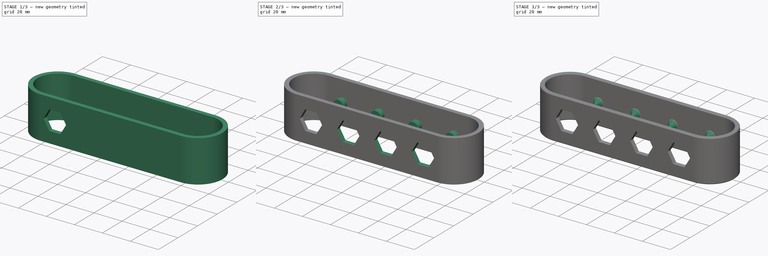
[diagram: build sequence overview — one tinted view per stage of 3, left to right]
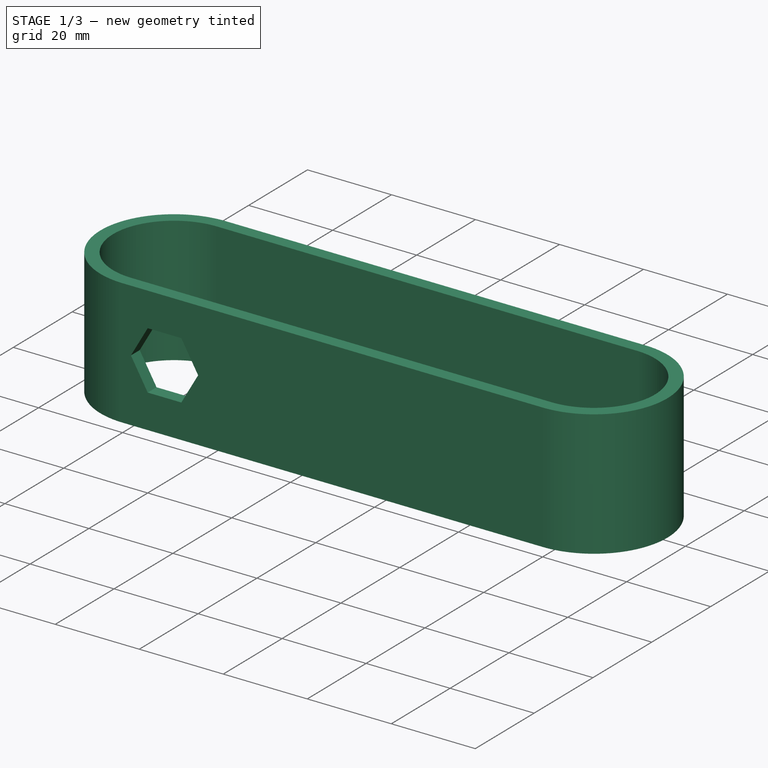
[diagram: stage 1 of 3 — iso view after this stage's code; geometry added in this stage tinted green]
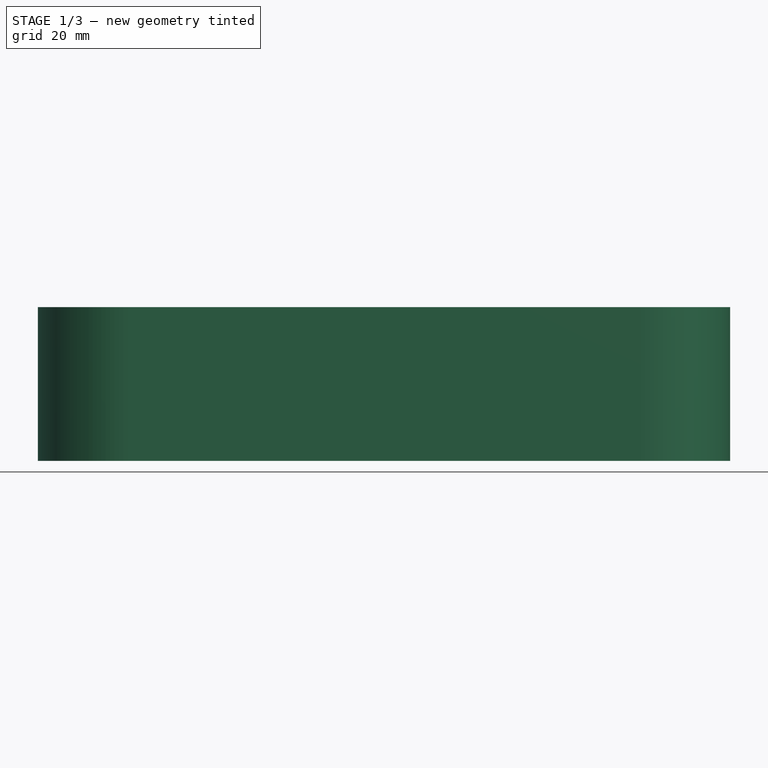
[diagram: stage 1 of 3 — front view after this stage's code; geometry added in this stage tinted green]
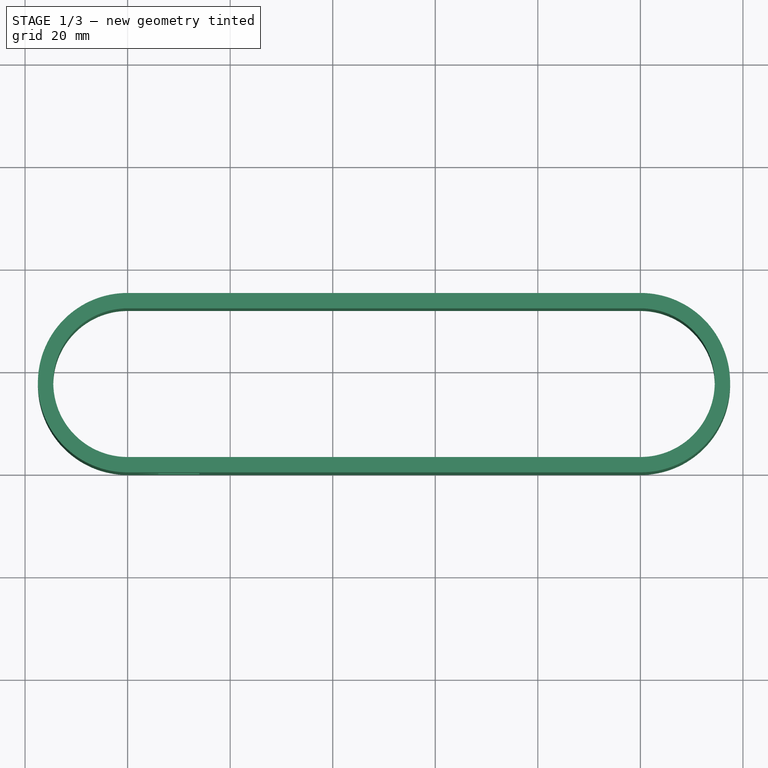
[diagram: stage 1 of 3 — top view after this stage's code; geometry added in this stage tinted green]
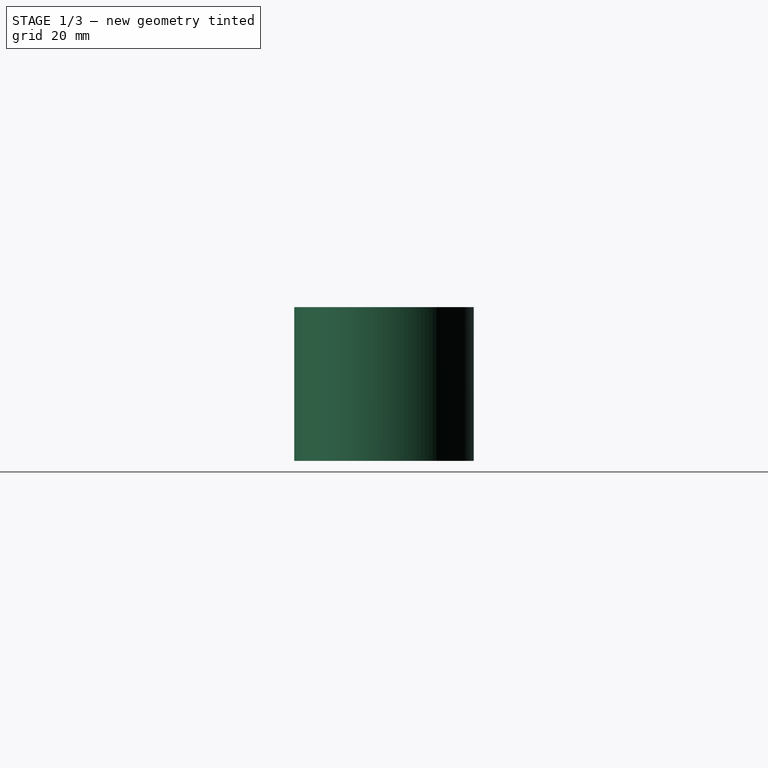
[diagram: stage 1 of 3 — right view after this stage's code; geometry added in this stage tinted green]
FCSTD DOCUMENT  (FreeCAD 0.16R6706 (Git))
Label: pb-v4-pour4
License: All rights reserved
LicenseURL: http://en.wikipedia.org/wiki/All_rights_reserved
objects: Sketcher::SketchObject×3, PartDesign::Pad×2, PartDesign::LinearPattern×2, PartDesign::Pocket×1, PartDesign::Draft×1, PartDesign::Chamfer×1
note: 13 computed .brp shape members not serialized (recipe doc carries the construction recipe); baked Part::Feature solids carry a one-line shape summary decoded from their .brp

FEATURE [Sketcher::SketchObject] Sketch
  sketch-geometry (8):
    g0: ArcOfCircle CenterX=0 CenterY=17.5 CenterZ=0 NormalX=0 NormalY=0 NormalZ=1 Radius=14.5 StartAngle=1.5708 EndAngle=4.71239
    g1: ArcOfCircle CenterX=100 CenterY=17.5 CenterZ=0 NormalX=0 NormalY=0 NormalZ=1 Radius=14.5 StartAngle=4.71239 EndAngle=7.85398
    g2: LineSegment StartX=0 StartY=3 StartZ=0 EndX=100 EndY=3 EndZ=0
    g3: LineSegment StartX=0 StartY=32 StartZ=0 EndX=100 EndY=32 EndZ=0
    g4: ArcOfCircle CenterX=0 CenterY=17.5 CenterZ=0 NormalX=0 NormalY=0 NormalZ=1 Radius=17.5 StartAngle=1.5708 EndAngle=4.71239
    g5: ArcOfCircle CenterX=100 CenterY=17.5 CenterZ=0 NormalX=0 NormalY=0 NormalZ=1 Radius=17.5 StartAngle=4.71239 EndAngle=7.85398
    g6: LineSegment StartX=0 StartY=0 StartZ=0 EndX=100 EndY=0 EndZ=0
    g7: LineSegment StartX=0 StartY=35 StartZ=0 EndX=100 EndY=35 EndZ=0
  constraints (18):
    c: Tangent(g0,g3) = 1.5708
    c: Tangent(g0,g2) = -1.5708
    c: Tangent(g2,g1) = -1.5708
    c: Tangent(g3,g1) = 1.5708
    c: Horizontal(g2)
    c: Equal(g0,g1)
    c: Distance(g3) = 100
    c: Distance(g0,g0) = 29
    c: Tangent(g4,g7) = 1.5708
    c: Tangent(g4,g6) = -1.5708
    c: Tangent(g6,g5) = -1.5708
    c: Tangent(g7,g5) = 1.5708
    c: Horizontal(g6)
    c: Equal(g4,g5)
    c: Coincident(g1,g5)
    c: Coincident(g4,g0)
    c: Distance(g1,g5) = 3
    c: Coincident(g4,g-1)
FEATURE [PartDesign::Pad] Pad
  Length = 30
  Length2 = 100
  Sketch = -> Sketch
  Type = 0
FEATURE [Sketcher::SketchObject] Sketch001
  Placement = pos=(0,0,0) rot=(1,0,0;1.5708rad)
  Support = -> Pad [Face2]
  sketch-geometry (7):
    g0: LineSegment StartX=18 StartY=15 StartZ=0 EndX=14 EndY=21.9282 EndZ=0
    g1: LineSegment StartX=14 StartY=21.9282 StartZ=0 EndX=6 EndY=21.9282 EndZ=0
    g2: LineSegment StartX=6 StartY=21.9282 StartZ=0 EndX=2 EndY=15 EndZ=0
    g3: LineSegment StartX=2 StartY=15 StartZ=0 EndX=6 EndY=8.0718 EndZ=0
    g4: LineSegment StartX=6 StartY=8.0718 StartZ=0 EndX=14 EndY=8.0718 EndZ=0
    g5: LineSegment StartX=14 StartY=8.0718 StartZ=0 EndX=18 EndY=15 EndZ=0
    g6: Circle [constr] CenterX=10 CenterY=15 CenterZ=0 NormalX=0 NormalY=0 NormalZ=1 Radius=8
  constraints (17):
    c: Coincident(g0,g1)
    c: Coincident(g1,g2)
    c: Coincident(g2,g3)
    c: Coincident(g3,g4)
    c: Coincident(g4,g5)
    c: Coincident(g5,g0)
    c: Equal(g0, g1-g5) x5
    c: PointOnObject(g0,g6)
    c: PointOnObject(g1,g6)
    c: PointOnObject(g2,g6)
    c: PointOnObject(g3,g6)
    c: PointOnObject(g4,g6)
    c: PointOnObject(g5,g6)
    c: Horizontal(g4)
    c: DistanceY(g-1,g6) = 15
    c: DistanceX(g-2,g6) = 10
    c: Radius(g6) = 8
FEATURE [PartDesign::Pocket] Pocket
  Length = 0
  Sketch = -> Sketch001
  Type = 2
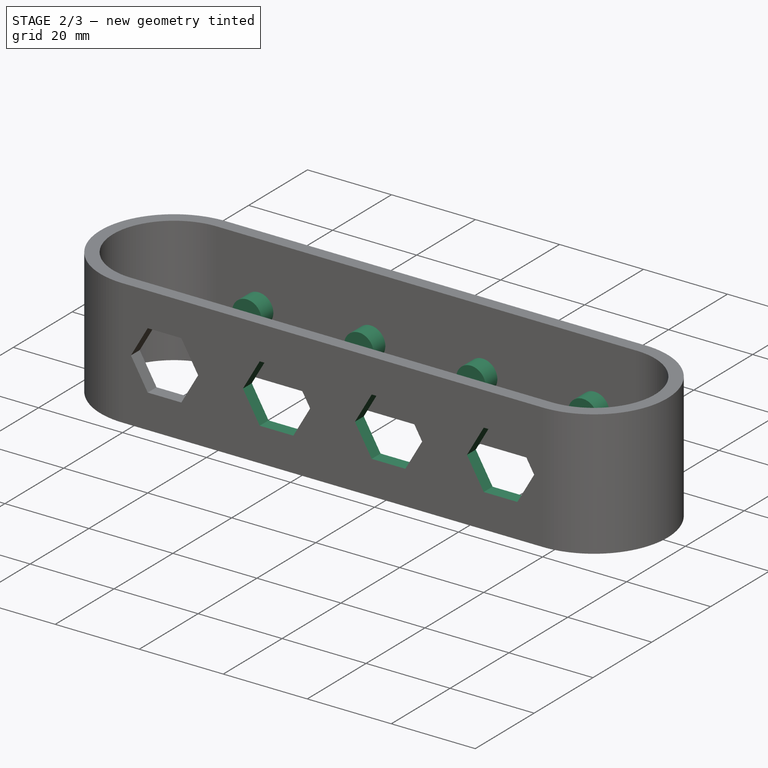
[diagram: stage 2 of 3 — iso view after this stage's code; geometry added in this stage tinted green]
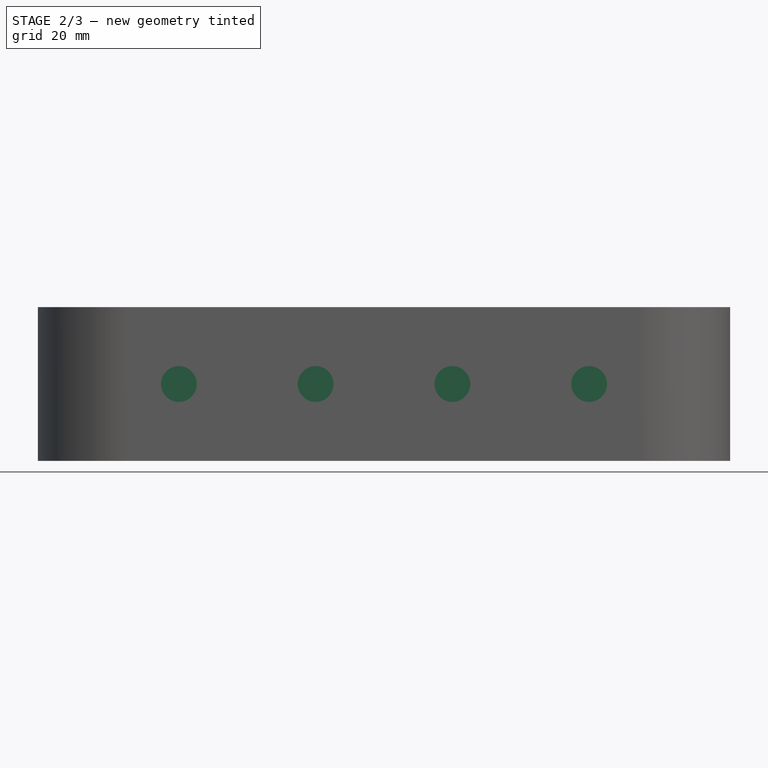
[diagram: stage 2 of 3 — front view after this stage's code; geometry added in this stage tinted green]
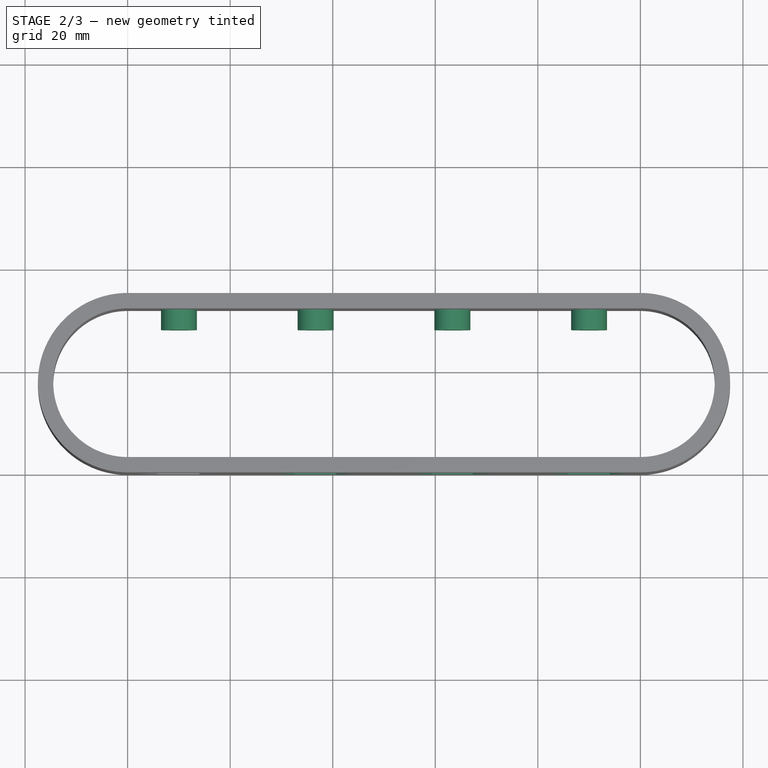
[diagram: stage 2 of 3 — top view after this stage's code; geometry added in this stage tinted green]
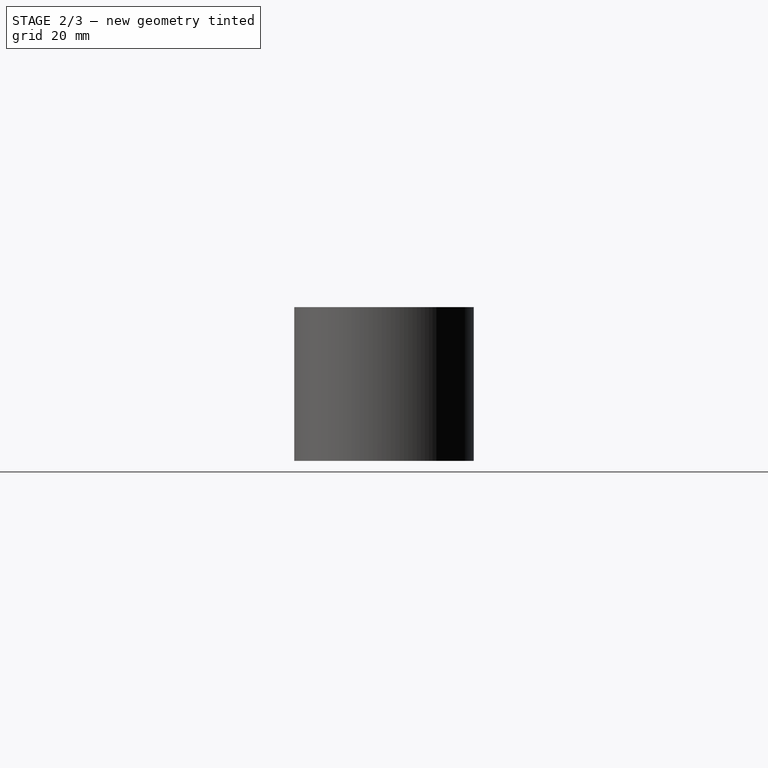
[diagram: stage 2 of 3 — right view after this stage's code; geometry added in this stage tinted green]
FEATURE [PartDesign::LinearPattern] LinearPattern
  Direction = -> Sketch001 [H_Axis]
  Length = 80
  Occurrences = 4
  Originals = -> [Pocket]
FEATURE [Sketcher::SketchObject] Sketch002
  Placement = pos=(0,32,0) rot=(1,0,0;1.5708rad)
  Support = -> LinearPattern [Face34]
  sketch-geometry (1):
    g0: Circle CenterX=10 CenterY=15 CenterZ=0 NormalX=0 NormalY=0 NormalZ=1 Radius=3.5
  constraints (3):
    c: DistanceY(g-1,g0) = 15
    c: DistanceX(g-2,g0) = 10
    c: Radius(g0) = 3.5
FEATURE [PartDesign::Pad] Pad001
  Length = 4
  Length2 = 100
  Sketch = -> Sketch002
  Type = 0
FEATURE [PartDesign::LinearPattern] LinearPattern001
  Direction = -> Sketch002 [H_Axis]
  Length = 80
  Occurrences = 4
  Originals = -> [Pad001]
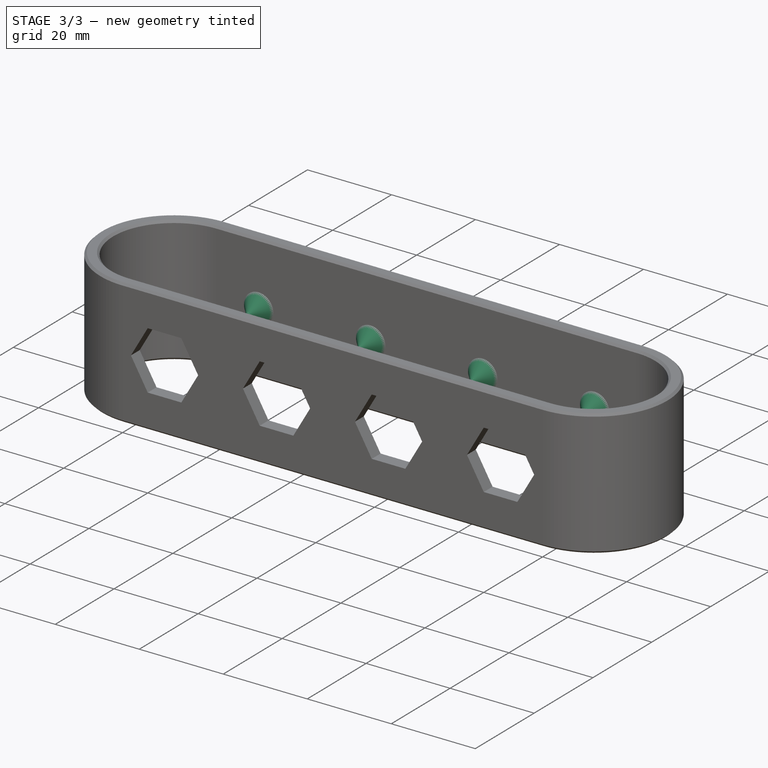
[diagram: stage 3 of 3 — iso view after this stage's code; geometry added in this stage tinted green]
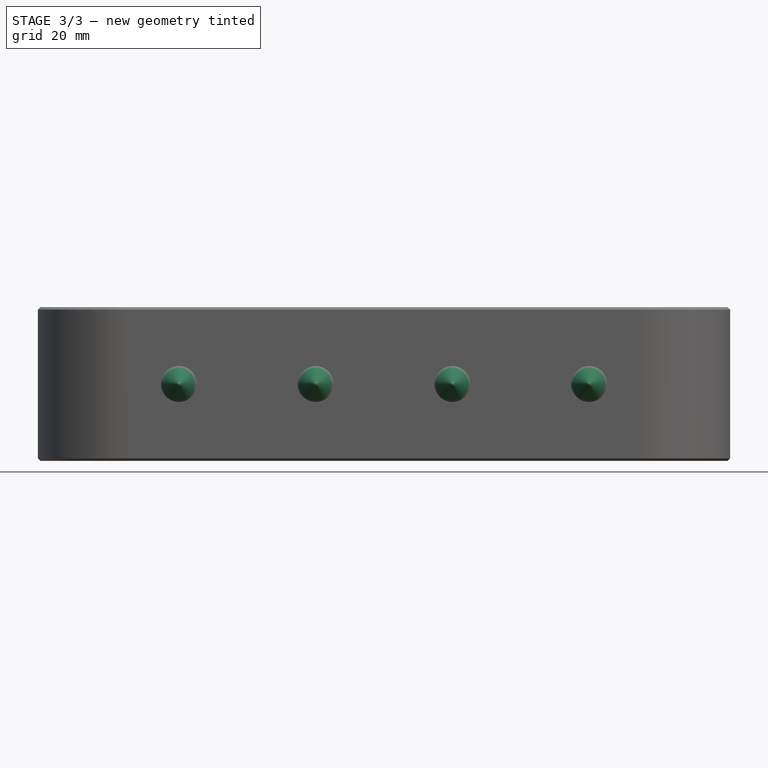
[diagram: stage 3 of 3 — front view after this stage's code; geometry added in this stage tinted green]
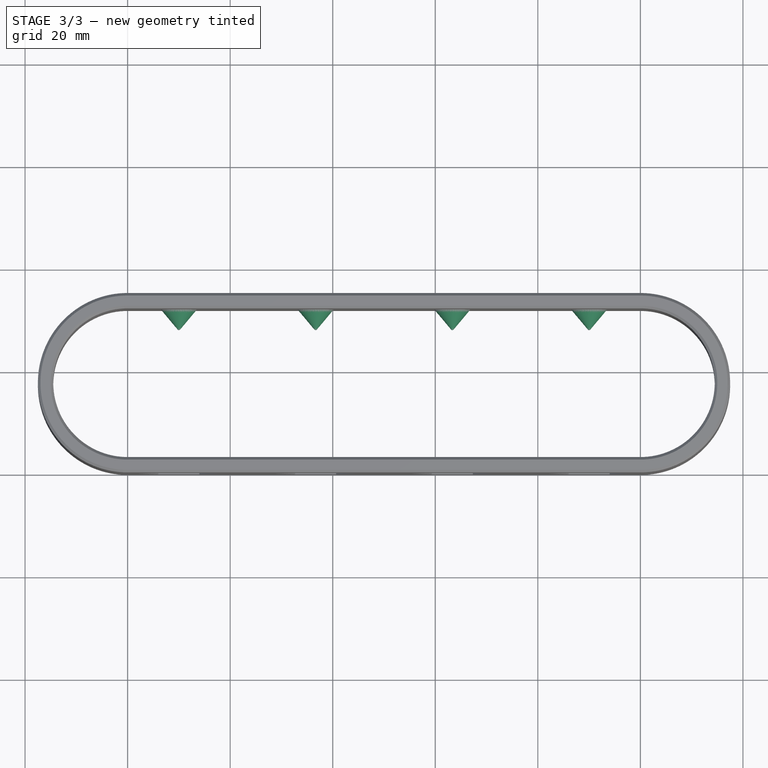
[diagram: stage 3 of 3 — top view after this stage's code; geometry added in this stage tinted green]
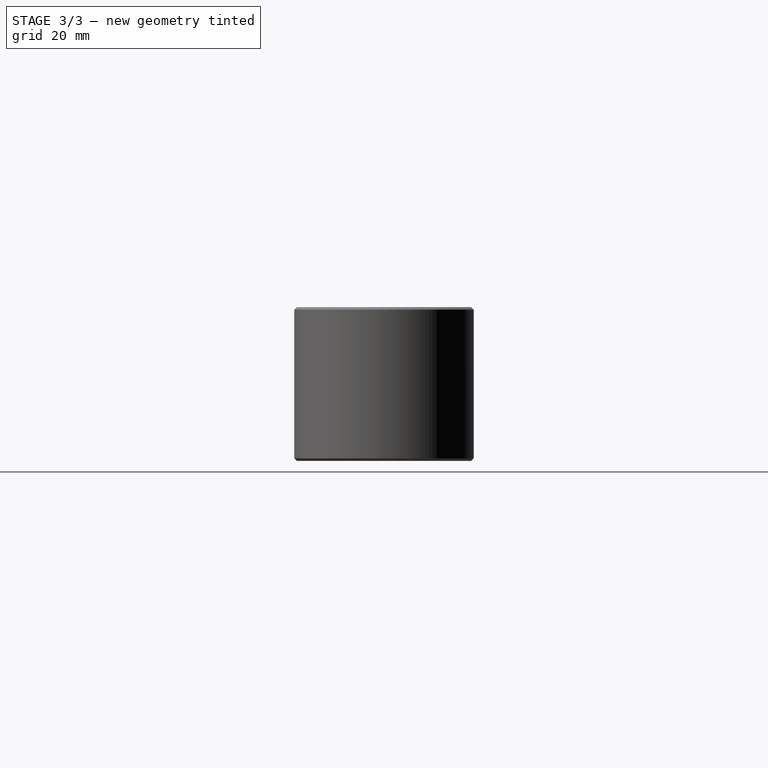
[diagram: stage 3 of 3 — right view after this stage's code; geometry added in this stage tinted green]
FEATURE [PartDesign::Draft] Draft
  Angle = 40
  Base = -> LinearPattern001 [Face10,Face2,Face9,Face8]
  NeutralPlane = -> LinearPattern001 [Face3]
  Reversed = true
FEATURE [PartDesign::Chamfer] Chamfer
  Base = -> Draft [Edge14,Edge15,Edge16,Edge17,Edge12,Edge18,Edge19,Edge5,Edge20,Edge21,Edge22,Edge23,Edge13,Edge24,Edge25,Edge6]
  Size = 0.5
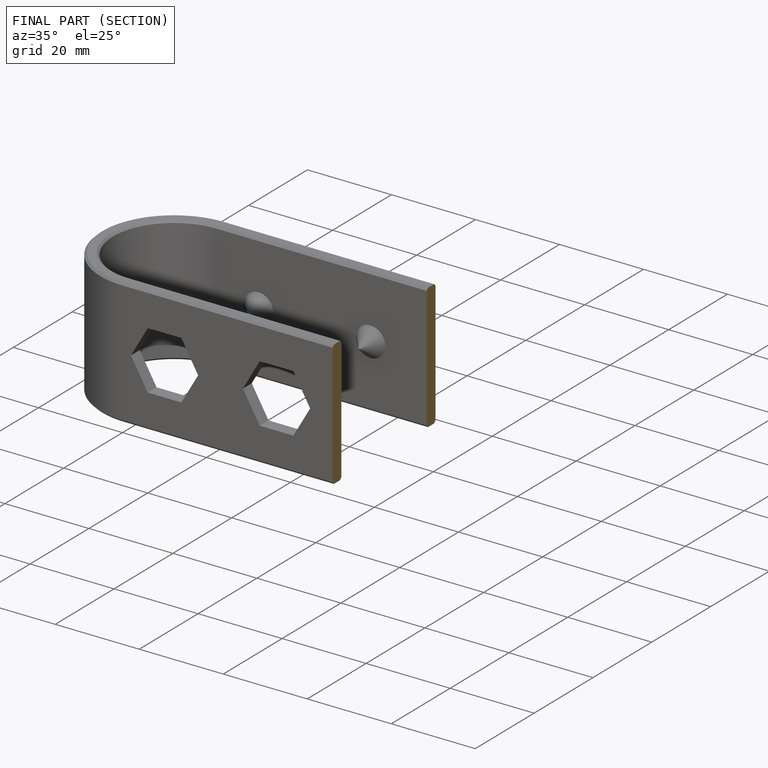
[diagram: finished part — half-section view (interior)]
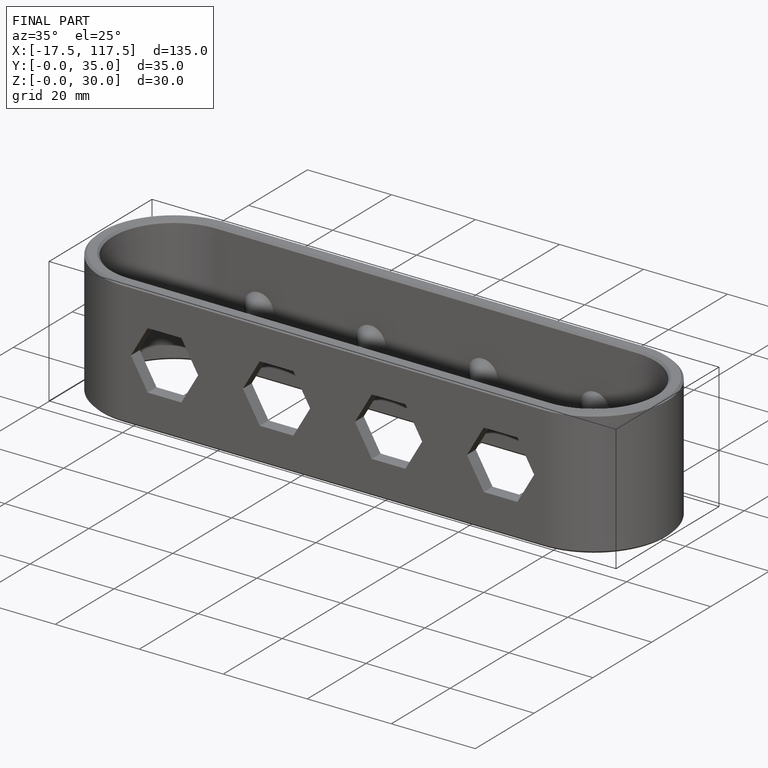
[diagram: finished part — iso view with bounding-box wireframe]
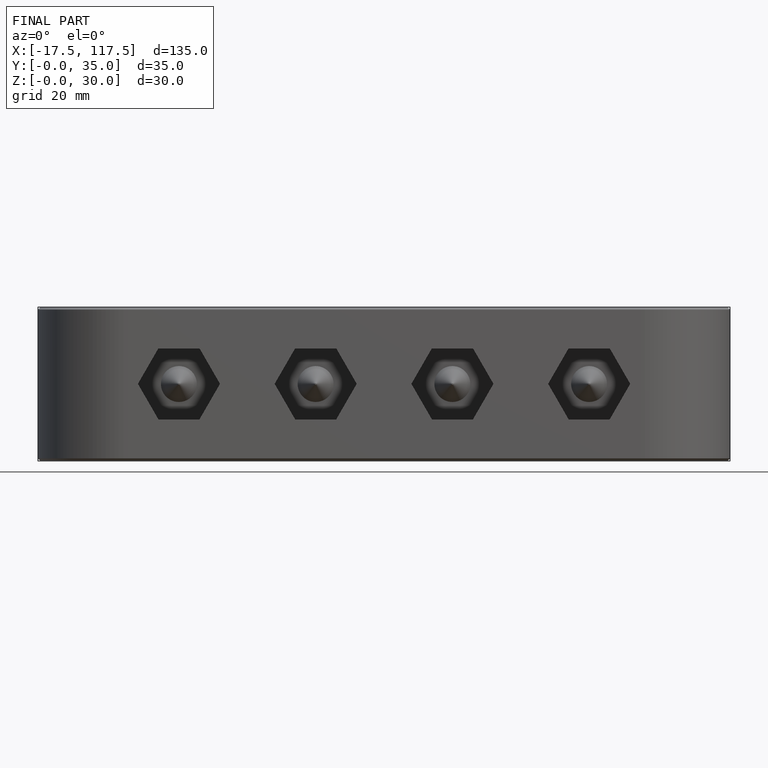
[diagram: finished part — front view with bounding-box wireframe]
